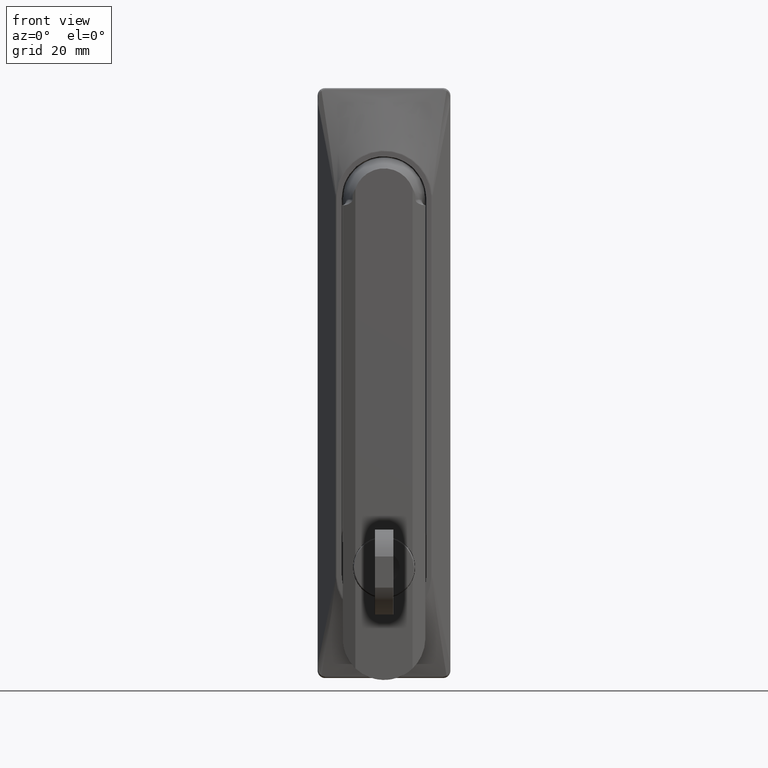
[diagram: clean part render]
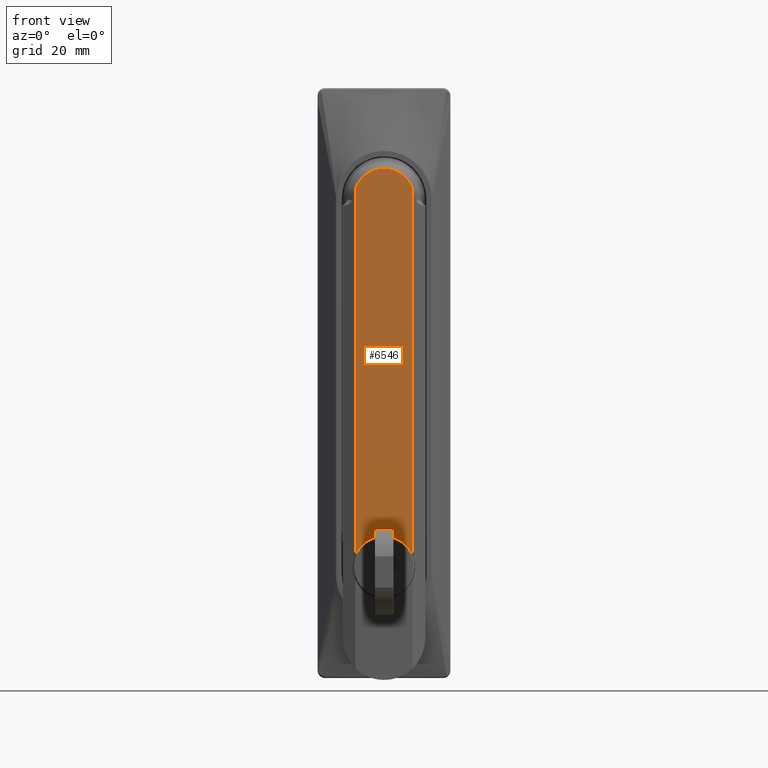
[diagram: same view with one face highlighted and labeled with its STEP entity id]
A machine part, front view. The second image highlights one B-rep face of the part: STEP entity #6546.
In plain terms, the highlighted face is a freeform B-spline surface patch.
Its self-contained STEP definition (entity closure, byte-faithful):
#4388=CARTESIAN_POINT('',(7.749999513151209,-11.000000533461620,-96.629679633978000));
#4389=VERTEX_POINT('',#4388);
#4403=CARTESIAN_POINT('',(7.246972207946743,-11.000000533453591,-95.652391688661993));
#4404=VERTEX_POINT('',#4403);
#4405=CARTESIAN_POINT('',(7.749999513151209,-11.000000533461620,-96.629679633978000));
#4406=CARTESIAN_POINT('',(7.530333907933940,-11.000000533457476,-96.124642910822189));
#4407=CARTESIAN_POINT('',(7.246972207946738,-11.000000533453591,-95.652391688661993));
#4415=(BOUNDED_CURVE()B_SPLINE_CURVE(2,(#4405,#4406,#4407),.UNSPECIFIED.,.F.,.U.)B_SPLINE_CURVE_WITH_KNOTS((3,3),(0.0,0.058289743311661),.UNSPECIFIED.)CURVE()GEOMETRIC_REPRESENTATION_ITEM()RATIONAL_B_SPLINE_CURVE((1.0,0.980906334135291,0.966264527799113))REPRESENTATION_ITEM(''));
#4416=EDGE_CURVE('',#4389,#4404,#4415,.T.);
#4448=CARTESIAN_POINT('',(-7.749999513151211,-11.000000533419859,-96.635345147051297));
#4449=VERTEX_POINT('',#4448);
#4450=CARTESIAN_POINT('',(7.246972207946743,-11.000000533453591,-95.652391688661993));
#4451=CARTESIAN_POINT('',(6.850193727515286,-11.000000533448169,-94.990551925055726));
#4452=CARTESIAN_POINT('',(6.087047048163400,-11.000000533440341,-94.042589103278971));
#4453=CARTESIAN_POINT('',(4.845155301877073,-11.000000533432130,-93.039742736068803));
#4454=CARTESIAN_POINT('',(3.763169990184106,-11.000000533426840,-92.400209955862294));
#4455=CARTESIAN_POINT('',(2.554377661509034,-11.000000533422821,-91.905790022609736));
#4456=CARTESIAN_POINT('',(0.903202299201685,-11.000000533419620,-91.526463916915972));
#4457=CARTESIAN_POINT('',(-0.800529291705219,-11.000000533419890,-91.521381678298440));
#4458=CARTESIAN_POINT('',(-2.455914437462163,-11.000000533419870,-91.876153184673399));
#4459=CARTESIAN_POINT('',(-4.033383961134237,-11.000000533419920,-92.494238662511947));
#4460=CARTESIAN_POINT('',(-5.443129126448160,-11.000000533419881,-93.451066691372503));
#4461=CARTESIAN_POINT('',(-6.810126277783416,-11.000000533419779,-94.887945647830463));
#4462=CARTESIAN_POINT('',(-7.442985170075649,-11.000000533419900,-95.927398521143985));
#4463=CARTESIAN_POINT('',(-7.749999513151211,-11.000000533419859,-96.635345147051297));
#4464=B_SPLINE_CURVE_WITH_KNOTS('',3,(#4450,#4451,#4452,#4453,#4454,#4455,#4456,#4457,#4458,#4459,#4460,#4461,#4462,#4463),.UNSPECIFIED.,.F.,.U.,(4,1,1,1,1,1,1,1,1,1,1,4),(0.000000054836438,2.314910433593635,3.617071543122670,4.774554039021993,6.076711164318112,7.523553240011946,9.838366504916635,11.140538097855201,12.587410229849690,14.902351030087980,16.204533541582279,18.519409285064601),.UNSPECIFIED.);
#4465=EDGE_CURVE('',#4404,#4449,#4464,.T.);
#6505=CARTESIAN_POINT('',(-8.524224434566971,-11.000000533461581,-101.873208370651400));
#6506=CARTESIAN_POINT('',(8.524224850219850,-11.000000533461581,-101.873208370651400));
#6507=CARTESIAN_POINT('',(-8.524224434566971,-11.000000533461581,13.464651556702609));
#6508=CARTESIAN_POINT('',(8.524224850219850,-11.000000533461581,13.464651556702609));
#6509=B_SPLINE_SURFACE_WITH_KNOTS('',1,1,((#6505,#6507),(#6506,#6508)),.UNSPECIFIED.,.F.,.F.,.U.,(2,2),(2,2),(0.0,17.048449284786820),(0.0,115.337859927354000),.UNSPECIFIED.);
#6510=ORIENTED_EDGE('',*,*,#4465,.F.);
#6511=ORIENTED_EDGE('',*,*,#4416,.F.);
#6512=CARTESIAN_POINT('',(7.749999513151209,-11.000000533461581,2.759983250949750));
#6513=VERTEX_POINT('',#6512);
#6514=CARTESIAN_POINT('',(7.749999513151209,-11.000000533461581,2.759983250949750));
#6515=CARTESIAN_POINT('',(7.749999513151209,-11.000000533461620,-96.629679633978000));
#6516=QUASI_UNIFORM_CURVE('',1,(#6514,#6515),.UNSPECIFIED.,.F.,.U.);
#6517=EDGE_CURVE('',#6513,#4389,#6516,.T.);
#6518=ORIENTED_EDGE('',*,*,#6517,.F.);
#6519=CARTESIAN_POINT('',(-7.749999513240701,-11.000000533419900,2.759983250813170));
#6520=VERTEX_POINT('',#6519);
#6521=CARTESIAN_POINT('',(7.749999513151209,-11.000000533461581,2.759983250949750));
#6522=CARTESIAN_POINT('',(7.476606533235773,-11.000000533455680,3.528893625975441));
#6523=CARTESIAN_POINT('',(6.861222596069291,-11.000000533447031,4.678643646898912));
#6524=CARTESIAN_POINT('',(5.738434632899653,-11.000000533437239,5.943076833453012));
#6525=CARTESIAN_POINT('',(4.676810260428801,-11.000000533430750,6.812735389654823));
#6526=CARTESIAN_POINT('',(3.325920916494638,-11.000000533424689,7.592040215335214));
#6527=CARTESIAN_POINT('',(1.736198756970053,-11.000000533420881,8.104689404715298));
#6528=CARTESIAN_POINT('',(0.210883101878543,-11.000000533419630,8.258787650938478));
#6529=CARTESIAN_POINT('',(-1.369474367817144,-11.000000533420140,8.167859528525915));
#6530=CARTESIAN_POINT('',(-3.013599705658706,-11.000000533419350,7.740364594628395));
#6531=CARTESIAN_POINT('',(-4.668846986258246,-11.000000533420881,6.848116797224050));
#6532=CARTESIAN_POINT('',(-5.836966755594188,-11.000000533419360,5.853013176921310));
#6533=CARTESIAN_POINT('',(-6.938199810380485,-11.000000533420049,4.538419877119804));
#6534=CARTESIAN_POINT('',(-7.485373741916034,-11.000000533419961,3.504061274555227));
#6535=CARTESIAN_POINT('',(-7.749999513240701,-11.000000533419900,2.759983250813170));
#6536=B_SPLINE_CURVE_WITH_KNOTS('',3,(#6521,#6522,#6523,#6524,#6525,#6526,#6527,#6528,#6529,#6530,#6531,#6532,#6533,#6534,#6535),.UNSPECIFIED.,.F.,.U.,(4,1,1,1,1,1,1,1,1,1,1,1,4),(0.000000375008906,2.448043992650160,3.869481011044215,5.054039262784066,6.554478611830028,8.528698112226000,10.029196009669580,11.134639705574630,13.266812478378620,15.083141463836840,16.741529290693141,17.847092261859011,20.216147815212409),.UNSPECIFIED.);
#6537=EDGE_CURVE('',#6513,#6520,#6536,.T.);
#6538=ORIENTED_EDGE('',*,*,#6537,.T.);
#6539=CARTESIAN_POINT('',(-7.749999513240701,-11.000000533419900,2.759983250813170));
#6540=CARTESIAN_POINT('',(-7.749999513151211,-11.000000533419859,-96.635345147051297));
#6541=QUASI_UNIFORM_CURVE('',1,(#6539,#6540),.UNSPECIFIED.,.F.,.U.);
#6542=EDGE_CURVE('',#6520,#4449,#6541,.T.);
#6543=ORIENTED_EDGE('',*,*,#6542,.T.);
#6544=EDGE_LOOP('',(#6510,#6511,#6518,#6538,#6543));
#6545=FACE_OUTER_BOUND('',#6544,.T.);
#6546=ADVANCED_FACE('',(#6545),#6509,.T.);